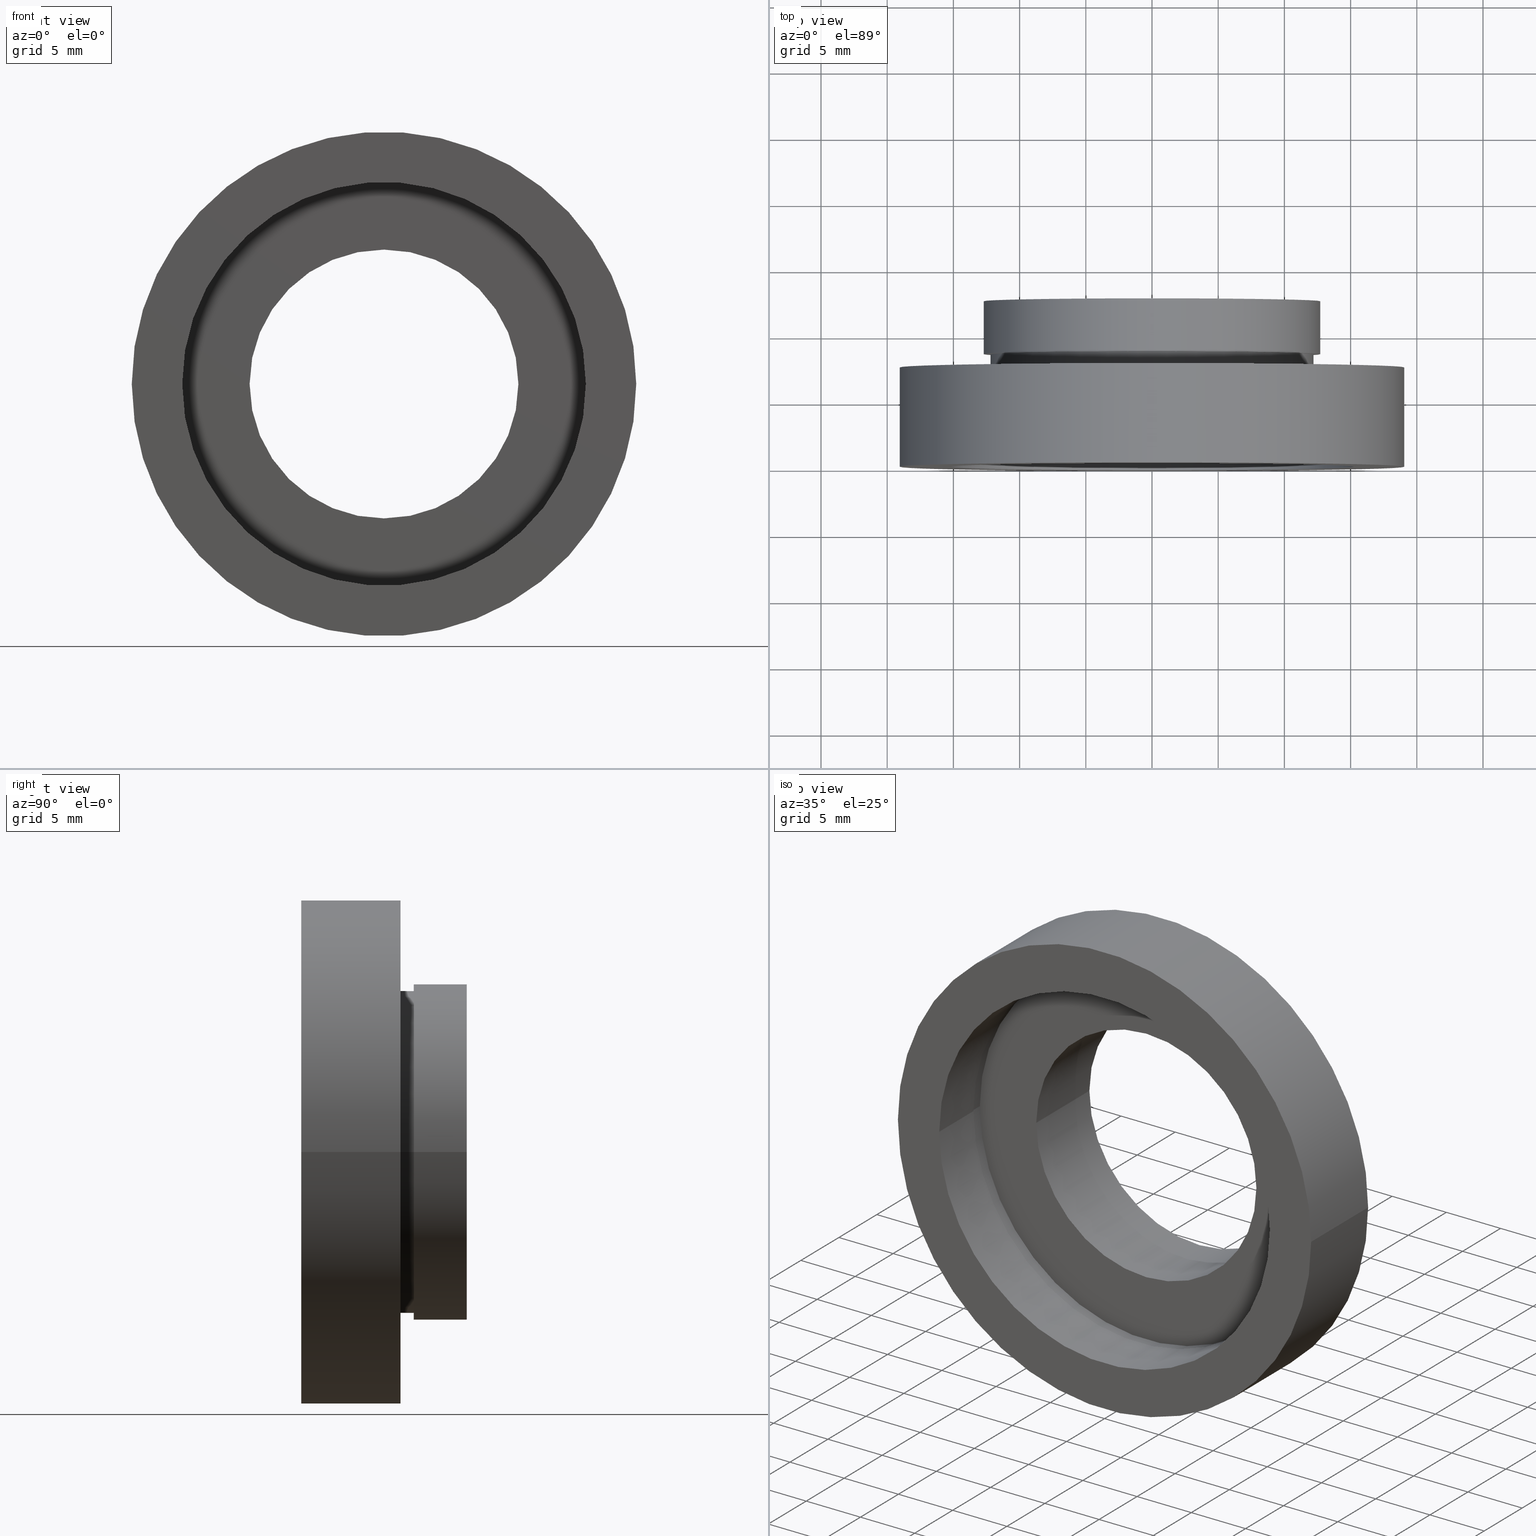
[diagram: canonical four-view strip — front | top / right | iso, engineering-drawing reading convention]
A machine part, canonical four-view strip (front | top / right | iso — engineering-drawing reading convention). The complete STEP part file that produces these views, byte-faithful:
ISO-10303-21;
HEADER;
FILE_DESCRIPTION (( 'STEP AP214' ),
    '1' );
FILE_NAME ('504110.STEP',
    '2019-10-08T06:07:28',
    ( '' ),
    ( '' ),
    'SwSTEP 2.0',
    'SolidWorks 2016',
    '' );
FILE_SCHEMA (( 'AUTOMOTIVE_DESIGN' ));
ENDSEC;

DATA;
#1 = VECTOR ( 'NONE', #292, 1000.000000000000000 ) ;
#2 = CARTESIAN_POINT ( 'NONE',  ( 12.19999999999999900, 16.88601823708207700, 1.494069094959770900E-015 ) ) ;
#3 = AXIS2_PLACEMENT_3D ( 'NONE', #568, #381, #423 ) ;
#4 = STYLED_ITEM ( 'NONE', ( #469 ), #587 ) ;
#5 = ORIENTED_EDGE ( 'NONE', *, *, #62, .F. ) ;
#6 = APPLICATION_CONTEXT ( 'automotive_design' ) ;
#7 = ADVANCED_FACE ( 'NONE', ( #277 ), #251, .F. ) ;
#8 = CYLINDRICAL_SURFACE ( 'NONE', #90, 19.05000000000000400 ) ;
#9 = CIRCLE ( 'NONE', #465, 19.05000000000000400 ) ;
#10 = CARTESIAN_POINT ( 'NONE',  ( 5.371323195044477300E-016, 12.49999999999999500, 0.0000000000000000000 ) ) ;
#11 = AXIS2_PLACEMENT_3D ( 'NONE', #204, #517, #338 ) ;
#12 = DIRECTION ( 'NONE',  ( -1.224646799147351000E-016, 1.000000000000000000, -0.0000000000000000000 ) ) ;
#13 = VERTEX_POINT ( 'NONE', #523 ) ;
#14 = PRESENTATION_LAYER_ASSIGNMENT (  '', '', ( #538 ) ) ;
#15 = SURFACE_STYLE_FILL_AREA ( #226 ) ;
#16 = PRODUCT ( '504110', '504110', '', ( #151 ) ) ;
#17 = PRESENTATION_LAYER_ASSIGNMENT (  '', '', ( #403 ) ) ;
#18 = EDGE_CURVE ( 'NONE', #165, #581, #170, .T. ) ;
#19 = LINE ( 'NONE', #2, #588 ) ;
#20 = CARTESIAN_POINT ( 'NONE',  ( 12.20000000000000100, 7.500000000000000000, 1.494069094959770900E-015 ) ) ;
#21 = CIRCLE ( 'NONE', #368, 12.71000000000000100 ) ;
#22 = DIRECTION ( 'NONE',  ( -1.224646799147351000E-016, 1.000000000000000000, -0.0000000000000000000 ) ) ;
#23 = DIRECTION ( 'NONE',  ( -1.224646799147351000E-016, 1.000000000000000000, -0.0000000000000000000 ) ) ;
#24 = DIRECTION ( 'NONE',  ( -1.000000000000000000, -1.130113013665672600E-016, 0.0000000000000000000 ) ) ;
#25 = ORIENTED_EDGE ( 'NONE', *, *, #18, .F. ) ;
#26 = DIRECTION ( 'NONE',  ( -1.000000000000000000, -1.709087168450056200E-016, 0.0000000000000000000 ) ) ;
#27 = DIRECTION ( 'NONE',  ( -1.224646799147351000E-016, 1.000000000000000000, -0.0000000000000000000 ) ) ;
#28 =( NAMED_UNIT ( * ) PLANE_ANGLE_UNIT ( ) SI_UNIT ( $, .RADIAN. ) );
#29 =( NAMED_UNIT ( * ) PLANE_ANGLE_UNIT ( ) SI_UNIT ( $, .RADIAN. ) );
#30 = SURFACE_SIDE_STYLE ('',( #347 ) ) ;
#31 = CIRCLE ( 'NONE', #3, 12.70999999999999900 ) ;
#32 = FACE_BOUND ( 'NONE', #100, .T. ) ;
#33 = CARTESIAN_POINT ( 'NONE',  ( 15.34999999999999800, 16.88601823708208000, 1.879832836691187100E-015 ) ) ;
#34 = ORIENTED_EDGE ( 'NONE', *, *, #541, .F. ) ;
#35 = DIRECTION ( 'NONE',  ( -1.000000000000000000, -1.138269997360109900E-016, 0.0000000000000000000 ) ) ;
#36 = DIRECTION ( 'NONE',  ( -1.224646799147351000E-016, 1.000000000000000000, -0.0000000000000000000 ) ) ;
#37 = FACE_OUTER_BOUND ( 'NONE', #114, .T. ) ;
#38 = CARTESIAN_POINT ( 'NONE',  ( 19.05000000000000400, -1.136494799577910300E-015, 2.332952152375708400E-015 ) ) ;
#39 = AXIS2_PLACEMENT_3D ( 'NONE', #411, #601, #133 ) ;
#40 = MECHANICAL_DESIGN_GEOMETRIC_PRESENTATION_REPRESENTATION (  '', ( #4 ), #372 ) ;
#41 = FILL_AREA_STYLE ('',( #513 ) ) ;
#42 = UNCERTAINTY_MEASURE_WITH_UNIT (LENGTH_MEASURE( 1.000000000000000100E-005 ), #435, 'distance_accuracy_value', 'NONE');
#43 = CIRCLE ( 'NONE', #592, 19.05000000000000400 ) ;
#44 = VECTOR ( 'NONE', #221, 1000.000000000000000 ) ;
#45 = DIRECTION ( 'NONE',  ( -1.224646799147351000E-016, 1.000000000000000000, -0.0000000000000000000 ) ) ;
#46 = CYLINDRICAL_SURFACE ( 'NONE', #153, 10.14999999999999900 ) ;
#47 =( LENGTH_UNIT ( ) NAMED_UNIT ( * ) SI_UNIT ( .MILLI., .METRE. ) );
#48 = ORIENTED_EDGE ( 'NONE', *, *, #18, .T. ) ;
#49 = ORIENTED_EDGE ( 'NONE', *, *, #357, .T. ) ;
#50 = CYLINDRICAL_SURFACE ( 'NONE', #142, 12.70999999999999900 ) ;
#51 = EDGE_LOOP ( 'NONE', ( #274, #567 ) ) ;
#52 =( LENGTH_UNIT ( ) NAMED_UNIT ( * ) SI_UNIT ( .MILLI., .METRE. ) );
#53 = CARTESIAN_POINT ( 'NONE',  ( 2.067940818438636500E-015, -3.469446951953614200E-015, 0.0000000000000000000 ) ) ;
#54 = VECTOR ( 'NONE', #176, 1000.000000000000000 ) ;
#55 = AXIS2_PLACEMENT_3D ( 'NONE', #314, #27, #186 ) ;
#56 = VERTEX_POINT ( 'NONE', #208 ) ;
#57 =( LENGTH_UNIT ( ) NAMED_UNIT ( * ) SI_UNIT ( .MILLI., .METRE. ) );
#58 = AXIS2_PLACEMENT_3D ( 'NONE', #478, #419, #35 ) ;
#59 = VERTEX_POINT ( 'NONE', #341 ) ;
#60 = MECHANICAL_DESIGN_GEOMETRIC_PRESENTATION_REPRESENTATION (  '', ( #403 ), #122 ) ;
#61 = DIRECTION ( 'NONE',  ( -1.224646799147351000E-016, 1.000000000000000000, -0.0000000000000000000 ) ) ;
#62 = EDGE_CURVE ( 'NONE', #214, #334, #267, .T. ) ;
#63 = DIRECTION ( 'NONE',  ( -1.224646799147351000E-016, 1.000000000000000000, -0.0000000000000000000 ) ) ;
#64 = ADVANCED_FACE ( 'NONE', ( #474, #37 ), #520, .F. ) ;
#65 = LINE ( 'NONE', #494, #254 ) ;
#66 = LINE ( 'NONE', #111, #500 ) ;
#67 = SURFACE_STYLE_USAGE ( .BOTH. , #108 ) ;
#68 = UNCERTAINTY_MEASURE_WITH_UNIT (LENGTH_MEASURE( 1.000000000000000100E-005 ), #57, 'distance_accuracy_value', 'NONE');
#69 = ORIENTED_EDGE ( 'NONE', *, *, #385, .T. ) ;
#70 = CYLINDRICAL_SURFACE ( 'NONE', #501, 12.19999999999999900 ) ;
#71 = VERTEX_POINT ( 'NONE', #576 ) ;
#72 = FACE_OUTER_BOUND ( 'NONE', #349, .T. ) ;
#73 = EDGE_LOOP ( 'NONE', ( #458, #296 ) ) ;
#74 = DIRECTION ( 'NONE',  ( -1.000000000000000000, -1.130113013665672600E-016, 0.0000000000000000000 ) ) ;
#75 = ORIENTED_EDGE ( 'NONE', *, *, #205, .F. ) ;
#76 = CARTESIAN_POINT ( 'NONE',  ( 0.0000000000000000000, 16.88601823708207700, 0.0000000000000000000 ) ) ;
#77 =( NAMED_UNIT ( * ) SI_UNIT ( $, .STERADIAN. ) SOLID_ANGLE_UNIT ( ) );
#78 = AXIS2_PLACEMENT_3D ( 'NONE', #364, #82, #180 ) ;
#79 = MECHANICAL_DESIGN_GEOMETRIC_PRESENTATION_REPRESENTATION (  '', ( #539 ), #112 ) ;
#80 = ORIENTED_EDGE ( 'NONE', *, *, #503, .T. ) ;
#81 = ORIENTED_EDGE ( 'NONE', *, *, #404, .T. ) ;
#82 = DIRECTION ( 'NONE',  ( -1.224646799147351000E-016, 1.000000000000000000, -0.0000000000000000000 ) ) ;
#83 = ORIENTED_EDGE ( 'NONE', *, *, #96, .T. ) ;
#84 = SURFACE_SIDE_STYLE ('',( #493 ) ) ;
#85 = CYLINDRICAL_SURFACE ( 'NONE', #476, 15.23999999999999800 ) ;
#86 = PRESENTATION_STYLE_ASSIGNMENT (( #408 ) ) ;
#87 = SURFACE_SIDE_STYLE ('',( #15 ) ) ;
#88 = ORIENTED_EDGE ( 'NONE', *, *, #167, .T. ) ;
#89 =( LENGTH_UNIT ( ) NAMED_UNIT ( * ) SI_UNIT ( .MILLI., .METRE. ) );
#90 = AXIS2_PLACEMENT_3D ( 'NONE', #260, #259, #164 ) ;
#91 = VERTEX_POINT ( 'NONE', #291 ) ;
#92 = FILL_AREA_STYLE ('',( #137 ) ) ;
#93 = AXIS2_PLACEMENT_3D ( 'NONE', #179, #318, #462 ) ;
#94 =( GEOMETRIC_REPRESENTATION_CONTEXT ( 3 ) GLOBAL_UNCERTAINTY_ASSIGNED_CONTEXT ( ( #42 ) ) GLOBAL_UNIT_ASSIGNED_CONTEXT ( ( #435, #382, #253 ) ) REPRESENTATION_CONTEXT ( 'NONE', 'WORKASPACE' ) );
#95 = DIRECTION ( 'NONE',  ( -1.224646799147351000E-016, 1.000000000000000000, -0.0000000000000000000 ) ) ;
#96 = EDGE_CURVE ( 'NONE', #181, #163, #19, .T. ) ;
#97 = SURFACE_STYLE_USAGE ( .BOTH. , #514 ) ;
#98 =( LENGTH_UNIT ( ) NAMED_UNIT ( * ) SI_UNIT ( .MILLI., .METRE. ) );
#99 = DIRECTION ( 'NONE',  ( -1.000000000000000000, -2.276539994720219300E-016, 0.0000000000000000000 ) ) ;
#100 = EDGE_LOOP ( 'NONE', ( #583, #113 ) ) ;
#101 = DIRECTION ( 'NONE',  ( -1.224646799147351000E-016, 1.000000000000000000, -0.0000000000000000000 ) ) ;
#102 = PRODUCT_DEFINITION_CONTEXT ( 'detailed design', #6, 'design' ) ;
#103 = EDGE_LOOP ( 'NONE', ( #331, #48 ) ) ;
#104 = FILL_AREA_STYLE ('',( #620 ) ) ;
#105 = DIRECTION ( 'NONE',  ( 1.000000000000000000, 1.224646799147351000E-016, 0.0000000000000000000 ) ) ;
#106 = CIRCLE ( 'NONE', #560, 15.34999999999999800 ) ;
#107 = APPLICATION_CONTEXT ( 'automotive_design' ) ;
#108 = SURFACE_SIDE_STYLE ('',( #456 ) ) ;
#109 = ADVANCED_FACE ( 'NONE', ( #619, #155 ), #152, .F. ) ;
#110 = UNCERTAINTY_MEASURE_WITH_UNIT (LENGTH_MEASURE( 1.000000000000000100E-005 ), #505, 'distance_accuracy_value', 'NONE');
#111 = CARTESIAN_POINT ( 'NONE',  ( 19.05000000000000400, 16.88601823708208000, 2.332952152375708400E-015 ) ) ;
#112 =( GEOMETRIC_REPRESENTATION_CONTEXT ( 3 ) GLOBAL_UNCERTAINTY_ASSIGNED_CONTEXT ( ( #546 ) ) GLOBAL_UNIT_ASSIGNED_CONTEXT ( ( #145, #236, #244 ) ) REPRESENTATION_CONTEXT ( 'NONE', 'WORKASPACE' ) );
#113 = ORIENTED_EDGE ( 'NONE', *, *, #605, .F. ) ;
#114 = EDGE_LOOP ( 'NONE', ( #460, #199 ) ) ;
#115 = COLOUR_RGB ( '',1.000000000000000000, 1.000000000000000000, 1.000000000000000000 ) ;
#116 = CIRCLE ( 'NONE', #222, 10.14999999999999900 ) ;
#117 = CARTESIAN_POINT ( 'NONE',  ( -19.05000000000000400, 16.88601823708207300, 0.0000000000000000000 ) ) ;
#118 = EDGE_LOOP ( 'NONE', ( #401, #69 ) ) ;
#119 = AXIS2_PLACEMENT_3D ( 'NONE', #209, #623, #436 ) ;
#120 = CARTESIAN_POINT ( 'NONE',  ( 10.15000000000000000, 5.499999999999997300, 1.243016501134563700E-015 ) ) ;
#121 = AXIS2_PLACEMENT_3D ( 'NONE', #266, #548, #504 ) ;
#122 =( GEOMETRIC_REPRESENTATION_CONTEXT ( 3 ) GLOBAL_UNCERTAINTY_ASSIGNED_CONTEXT ( ( #307 ) ) GLOBAL_UNIT_ASSIGNED_CONTEXT ( ( #52, #526, #430 ) ) REPRESENTATION_CONTEXT ( 'NONE', 'WORKASPACE' ) );
#123 = CARTESIAN_POINT ( 'NONE',  ( 12.71000000000000300, 8.500000000000000000, 1.556526081716286200E-015 ) ) ;
#124 = EDGE_CURVE ( 'NONE', #554, #261, #9, .T. ) ;
#125 = DIRECTION ( 'NONE',  ( -1.224646799147351000E-016, 1.000000000000000000, -0.0000000000000000000 ) ) ;
#126 = CARTESIAN_POINT ( 'NONE',  ( 19.05000000000000400, 7.499999999999999100, 2.332952152375708400E-015 ) ) ;
#127 = ORIENTED_EDGE ( 'NONE', *, *, #234, .T. ) ;
#128 = CARTESIAN_POINT ( 'NONE',  ( -10.14999999999999900, 16.88601823708207700, 0.0000000000000000000 ) ) ;
#129 = CYLINDRICAL_SURFACE ( 'NONE', #304, 15.34999999999999800 ) ;
#130 = COLOUR_RGB ( '',1.000000000000000000, 1.000000000000000000, 1.000000000000000000 ) ;
#131 = DIRECTION ( 'NONE',  ( -1.224646799147351000E-016, 1.000000000000000000, -0.0000000000000000000 ) ) ;
#132 = SURFACE_STYLE_USAGE ( .BOTH. , #84 ) ;
#133 = DIRECTION ( 'NONE',  ( 1.000000000000000000, 1.224646799147351000E-016, 0.0000000000000000000 ) ) ;
#134 = CARTESIAN_POINT ( 'NONE',  ( -10.15000000000000000, 12.49999999999999500, 0.0000000000000000000 ) ) ;
#135 = VERTEX_POINT ( 'NONE', #572 ) ;
#136 = CARTESIAN_POINT ( 'NONE',  ( 5.371323195044473300E-016, 12.49999999999999600, 0.0000000000000000000 ) ) ;
#137 = FILL_AREA_STYLE_COLOUR ( '', #130 ) ;
#138 = DIRECTION ( 'NONE',  ( -1.000000000000000000, -1.365923996832131400E-016, 0.0000000000000000000 ) ) ;
#139 = EDGE_LOOP ( 'NONE', ( #442, #127, #622, #355 ) ) ;
#140 = ORIENTED_EDGE ( 'NONE', *, *, #308, .F. ) ;
#141 = AXIS2_PLACEMENT_3D ( 'NONE', #616, #285, #198 ) ;
#142 = AXIS2_PLACEMENT_3D ( 'NONE', #240, #472, #327 ) ;
#143 = DIRECTION ( 'NONE',  ( -1.000000000000000000, 0.0000000000000000000, 0.0000000000000000000 ) ) ;
#144 = SURFACE_STYLE_USAGE ( .BOTH. , #30 ) ;
#145 =( LENGTH_UNIT ( ) NAMED_UNIT ( * ) SI_UNIT ( .MILLI., .METRE. ) );
#146 = FACE_OUTER_BOUND ( 'NONE', #73, .T. ) ;
#147 = CARTESIAN_POINT ( 'NONE',  ( 1.026991039163387700E-015, 8.499999999999998200, 0.0000000000000000000 ) ) ;
#148 = ORIENTED_EDGE ( 'NONE', *, *, #375, .F. ) ;
#149 = CARTESIAN_POINT ( 'NONE',  ( 0.0000000000000000000, 0.0000000000000000000, 0.0000000000000000000 ) ) ;
#150 = AXIS2_PLACEMENT_3D ( 'NONE', #389, #431, #105 ) ;
#151 = PRODUCT_CONTEXT ( 'NONE', #107, 'mechanical' ) ;
#152 = PLANE ( 'NONE',  #11 ) ;
#153 = AXIS2_PLACEMENT_3D ( 'NONE', #555, #606, #367 ) ;
#154 = ADVANCED_FACE ( 'NONE', ( #506 ), #530, .T. ) ;
#155 = FACE_BOUND ( 'NONE', #103, .T. ) ;
#156 = APPLICATION_PROTOCOL_DEFINITION ( 'draft international standard', 'automotive_design', 1998, #107 ) ;
#157 = EDGE_CURVE ( 'NONE', #71, #181, #178, .T. ) ;
#158 = ORIENTED_EDGE ( 'NONE', *, *, #417, .T. ) ;
#159 = DIRECTION ( 'NONE',  ( -1.224646799147351000E-016, 1.000000000000000000, -0.0000000000000000000 ) ) ;
#160 = CARTESIAN_POINT ( 'NONE',  ( 5.371323195044473300E-016, 12.49999999999999600, 0.0000000000000000000 ) ) ;
#161 = VECTOR ( 'NONE', #496, 1000.000000000000000 ) ;
#162 = EDGE_LOOP ( 'NONE', ( #148, #455, #245, #183 ) ) ;
#163 = VERTEX_POINT ( 'NONE', #270 ) ;
#164 = DIRECTION ( 'NONE',  ( -1.000000000000000000, -1.821231995776175000E-016, 0.0000000000000000000 ) ) ;
#165 = VERTEX_POINT ( 'NONE', #323 ) ;
#166 = FACE_OUTER_BOUND ( 'NONE', #286, .T. ) ;
#167 = EDGE_CURVE ( 'NONE', #394, #163, #237, .T. ) ;
#168 = VECTOR ( 'NONE', #392, 1000.000000000000000 ) ;
#169 = VERTEX_POINT ( 'NONE', #134 ) ;
#170 = CIRCLE ( 'NONE', #220, 15.24000000000000000 ) ;
#171 = CARTESIAN_POINT ( 'NONE',  ( 0.0000000000000000000, 16.88601823708207700, 0.0000000000000000000 ) ) ;
#172 = MECHANICAL_DESIGN_GEOMETRIC_PRESENTATION_REPRESENTATION (  '', ( #538 ), #402 ) ;
#173 = PRESENTATION_LAYER_ASSIGNMENT (  '', '', ( #4 ) ) ;
#174 = MANIFOLD_SOLID_BREP ( '��ת1', #332 ) ;
#175 = PLANE ( 'NONE',  #39 ) ;
#176 = DIRECTION ( 'NONE',  ( -1.224646799147351000E-016, 1.000000000000000000, -0.0000000000000000000 ) ) ;
#177 = ADVANCED_BREP_SHAPE_REPRESENTATION ( '504110', ( #174, #249 ), #94 ) ;
#178 = CIRCLE ( 'NONE', #273, 12.19999999999999900 ) ;
#179 = CARTESIAN_POINT ( 'NONE',  ( 2.067940818438636500E-015, -3.469446951953614200E-015, 0.0000000000000000000 ) ) ;
#180 = DIRECTION ( 'NONE',  ( -1.000000000000000000, -1.138269997360109900E-016, 0.0000000000000000000 ) ) ;
#181 = VERTEX_POINT ( 'NONE', #20 ) ;
#182 = COLOUR_RGB ( '',1.000000000000000000, 1.000000000000000000, 1.000000000000000000 ) ;
#183 = ORIENTED_EDGE ( 'NONE', *, *, #346, .T. ) ;
#184 = CIRCLE ( 'NONE', #608, 12.71000000000000100 ) ;
#185 = CARTESIAN_POINT ( 'NONE',  ( 1.394385078907593200E-015, 5.499999999999996400, 0.0000000000000000000 ) ) ;
#186 = DIRECTION ( 'NONE',  ( -1.000000000000000000, -1.421904488505579700E-016, 0.0000000000000000000 ) ) ;
#187 = EDGE_CURVE ( 'NONE', #581, #284, #528, .T. ) ;
#188 = SURFACE_STYLE_USAGE ( .BOTH. , #232 ) ;
#189 = CARTESIAN_POINT ( 'NONE',  ( 1.149455719078122700E-015, 7.499999999999998200, 0.0000000000000000000 ) ) ;
#190 = ORIENTED_EDGE ( 'NONE', *, *, #477, .F. ) ;
#191 = AXIS2_PLACEMENT_3D ( 'NONE', #559, #23, #612 ) ;
#192 = AXIS2_PLACEMENT_3D ( 'NONE', #376, #509, #337 ) ;
#193 = EDGE_CURVE ( 'NONE', #519, #135, #196, .T. ) ;
#194 = DIRECTION ( 'NONE',  ( -1.000000000000000000, -1.365923996832131400E-016, 0.0000000000000000000 ) ) ;
#195 = CIRCLE ( 'NONE', #437, 19.05000000000000100 ) ;
#196 = CIRCLE ( 'NONE', #339, 15.34999999999999800 ) ;
#197 =( NAMED_UNIT ( * ) PLANE_ANGLE_UNIT ( ) SI_UNIT ( $, .RADIAN. ) );
#198 = DIRECTION ( 'NONE',  ( -1.000000000000000000, -1.224646799147351000E-016, 0.0000000000000000000 ) ) ;
#199 = ORIENTED_EDGE ( 'NONE', *, *, #224, .T. ) ;
#200 = SURFACE_STYLE_USAGE ( .BOTH. , #242 ) ;
#201 = LINE ( 'NONE', #609, #544 ) ;
#202 = FILL_AREA_STYLE ('',( #280 ) ) ;
#203 = DIRECTION ( 'NONE',  ( 1.000000000000000000, 0.0000000000000000000, 0.0000000000000000000 ) ) ;
#204 = CARTESIAN_POINT ( 'NONE',  ( 19.05000000000000400, -4.336808689942023700E-016, 0.0000000000000000000 ) ) ;
#205 = EDGE_CURVE ( 'NONE', #508, #59, #21, .T. ) ;
#206 = EDGE_LOOP ( 'NONE', ( #499, #463, #295, #448 ) ) ;
#207 = DIRECTION ( 'NONE',  ( -1.224646799147351000E-016, 1.000000000000000000, -0.0000000000000000000 ) ) ;
#208 = CARTESIAN_POINT ( 'NONE',  ( -12.70999999999999700, 8.499999999999996400, 0.0000000000000000000 ) ) ;
#209 = CARTESIAN_POINT ( 'NONE',  ( 0.0000000000000000000, 16.88601823708207700, 0.0000000000000000000 ) ) ;
#210 = ADVANCED_FACE ( 'NONE', ( #32, #146 ), #223, .F. ) ;
#211 = PRESENTATION_LAYER_ASSIGNMENT (  '', '', ( #342 ) ) ;
#212 = ADVANCED_FACE ( 'NONE', ( #566 ), #8, .T. ) ;
#213 = AXIS2_PLACEMENT_3D ( 'NONE', #160, #348, #344 ) ;
#214 = VERTEX_POINT ( 'NONE', #120 ) ;
#215 = VERTEX_POINT ( 'NONE', #589 ) ;
#216 = CYLINDRICAL_SURFACE ( 'NONE', #191, 19.05000000000000400 ) ;
#217 = VERTEX_POINT ( 'NONE', #123 ) ;
#218 = CARTESIAN_POINT ( 'NONE',  ( 1.516849758822328300E-015, 4.499999999999997300, 0.0000000000000000000 ) ) ;
#219 = ORIENTED_EDGE ( 'NONE', *, *, #450, .F. ) ;
#220 = AXIS2_PLACEMENT_3D ( 'NONE', #53, #61, #246 ) ;
#221 = DIRECTION ( 'NONE',  ( -1.224646799147351000E-016, 1.000000000000000000, -0.0000000000000000000 ) ) ;
#222 = AXIS2_PLACEMENT_3D ( 'NONE', #185, #131, #322 ) ;
#223 = PLANE ( 'NONE',  #558 ) ;
#224 = EDGE_CURVE ( 'NONE', #135, #519, #422, .T. ) ;
#225 = DIRECTION ( 'NONE',  ( -1.000000000000000000, -1.224646799147350700E-016, 0.0000000000000000000 ) ) ;
#226 = FILL_AREA_STYLE ('',( #256 ) ) ;
#227 = PRESENTATION_STYLE_ASSIGNMENT (( #97 ) ) ;
#228 = DIRECTION ( 'NONE',  ( -1.224646799147351000E-016, 1.000000000000000000, -0.0000000000000000000 ) ) ;
#229 = FILL_AREA_STYLE_COLOUR ( '', #243 ) ;
#230 = PRESENTATION_STYLE_ASSIGNMENT (( #132 ) ) ;
#231 = EDGE_CURVE ( 'NONE', #581, #165, #352, .T. ) ;
#232 = SURFACE_SIDE_STYLE ('',( #535 ) ) ;
#233 =( NAMED_UNIT ( * ) PLANE_ANGLE_UNIT ( ) SI_UNIT ( $, .RADIAN. ) );
#234 = EDGE_CURVE ( 'NONE', #181, #71, #444, .T. ) ;
#235 = DIRECTION ( 'NONE',  ( -1.000000000000000000, -2.260226027331345300E-016, 0.0000000000000000000 ) ) ;
#236 =( NAMED_UNIT ( * ) PLANE_ANGLE_UNIT ( ) SI_UNIT ( $, .RADIAN. ) );
#237 = CIRCLE ( 'NONE', #55, 12.19999999999999900 ) ;
#238 =( GEOMETRIC_REPRESENTATION_CONTEXT ( 3 ) GLOBAL_UNCERTAINTY_ASSIGNED_CONTEXT ( ( #440 ) ) GLOBAL_UNIT_ASSIGNED_CONTEXT ( ( #47, #197, #426 ) ) REPRESENTATION_CONTEXT ( 'NONE', 'WORKASPACE' ) );
#239 = SURFACE_SIDE_STYLE ('',( #597 ) ) ;
#240 = CARTESIAN_POINT ( 'NONE',  ( 0.0000000000000000000, 16.88601823708207700, 0.0000000000000000000 ) ) ;
#241 = EDGE_LOOP ( 'NONE', ( #302, #80, #388, #190 ) ) ;
#242 = SURFACE_SIDE_STYLE ('',( #379 ) ) ;
#243 = COLOUR_RGB ( '',1.000000000000000000, 1.000000000000000000, 1.000000000000000000 ) ;
#244 =( NAMED_UNIT ( * ) SI_UNIT ( $, .STERADIAN. ) SOLID_ANGLE_UNIT ( ) );
#245 = ORIENTED_EDGE ( 'NONE', *, *, #450, .T. ) ;
#246 = DIRECTION ( 'NONE',  ( -1.000000000000000000, -1.224646799147350700E-016, 0.0000000000000000000 ) ) ;
#247 = MECHANICAL_DESIGN_GEOMETRIC_PRESENTATION_REPRESENTATION (  '', ( #473 ), #276 ) ;
#248 = ADVANCED_FACE ( 'NONE', ( #491 ), #584, .T. ) ;
#249 = AXIS2_PLACEMENT_3D ( 'NONE', #149, #475, #203 ) ;
#250 = EDGE_CURVE ( 'NONE', #512, #554, #545, .T. ) ;
#251 = CYLINDRICAL_SURFACE ( 'NONE', #119, 15.34999999999999800 ) ;
#252 = ADVANCED_FACE ( 'NONE', ( #510 ), #461, .F. ) ;
#253 =( NAMED_UNIT ( * ) SI_UNIT ( $, .STERADIAN. ) SOLID_ANGLE_UNIT ( ) );
#254 = VECTOR ( 'NONE', #406, 1000.000000000000000 ) ;
#255 = ADVANCED_FACE ( 'NONE', ( #415, #72 ), #175, .F. ) ;
#256 = FILL_AREA_STYLE_COLOUR ( '', #380 ) ;
#257 = EDGE_CURVE ( 'NONE', #165, #290, #294, .T. ) ;
#258 = CIRCLE ( 'NONE', #466, 10.15000000000000000 ) ;
#259 = DIRECTION ( 'NONE',  ( -1.224646799147351000E-016, 1.000000000000000000, -0.0000000000000000000 ) ) ;
#260 = CARTESIAN_POINT ( 'NONE',  ( 0.0000000000000000000, 16.88601823708207700, 0.0000000000000000000 ) ) ;
#261 = VERTEX_POINT ( 'NONE', #126 ) ;
#262 = MECHANICAL_DESIGN_GEOMETRIC_PRESENTATION_REPRESENTATION (  '', ( #342 ), #238 ) ;
#263 = CARTESIAN_POINT ( 'NONE',  ( -15.23999999999999500, 4.499999999999995600, 0.0000000000000000000 ) ) ;
#264 = CIRCLE ( 'NONE', #591, 10.14999999999999900 ) ;
#265 = CARTESIAN_POINT ( 'NONE',  ( 5.371323195044477300E-016, 12.49999999999999500, 0.0000000000000000000 ) ) ;
#266 = CARTESIAN_POINT ( 'NONE',  ( 10.15000000000000000, 5.499999999999999100, 0.0000000000000000000 ) ) ;
#267 = LINE ( 'NONE', #578, #1 ) ;
#268 = DIRECTION ( 'NONE',  ( -1.000000000000000000, -2.276539994720219300E-016, 0.0000000000000000000 ) ) ;
#269 = DIRECTION ( 'NONE',  ( -1.224646799147351000E-016, 1.000000000000000000, -0.0000000000000000000 ) ) ;
#270 = CARTESIAN_POINT ( 'NONE',  ( 12.20000000000000100, 8.500000000000000000, 1.494069094959770900E-015 ) ) ;
#271 = DIRECTION ( 'NONE',  ( -1.000000000000000000, 0.0000000000000000000, 0.0000000000000000000 ) ) ;
#272 = ORIENTED_EDGE ( 'NONE', *, *, #157, .F. ) ;
#273 = AXIS2_PLACEMENT_3D ( 'NONE', #189, #557, #607 ) ;
#274 = ORIENTED_EDGE ( 'NONE', *, *, #417, .F. ) ;
#275 = PLANE ( 'NONE',  #121 ) ;
#276 =( GEOMETRIC_REPRESENTATION_CONTEXT ( 3 ) GLOBAL_UNCERTAINTY_ASSIGNED_CONTEXT ( ( #562 ) ) GLOBAL_UNIT_ASSIGNED_CONTEXT ( ( #492, #28, #454 ) ) REPRESENTATION_CONTEXT ( 'NONE', 'WORKASPACE' ) );
#277 = FACE_OUTER_BOUND ( 'NONE', #162, .T. ) ;
#278 = PRODUCT_DEFINITION ( 'δ֪', '', #305, #102 ) ;
#279 = EDGE_CURVE ( 'NONE', #163, #394, #481, .T. ) ;
#280 = FILL_AREA_STYLE_COLOUR ( '', #182 ) ;
#281 = FILL_AREA_STYLE ('',( #614 ) ) ;
#282 = LINE ( 'NONE', #529, #168 ) ;
#283 = CARTESIAN_POINT ( 'NONE',  ( 0.0000000000000000000, 16.88601823708207700, 0.0000000000000000000 ) ) ;
#284 = VERTEX_POINT ( 'NONE', #263 ) ;
#285 = DIRECTION ( 'NONE',  ( -1.224646799147351000E-016, 1.000000000000000000, 0.0000000000000000000 ) ) ;
#286 = EDGE_LOOP ( 'NONE', ( #312, #432, #317, #219 ) ) ;
#287 = ORIENTED_EDGE ( 'NONE', *, *, #385, .F. ) ;
#288 = EDGE_CURVE ( 'NONE', #59, #508, #184, .T. ) ;
#289 = EDGE_CURVE ( 'NONE', #284, #290, #405, .T. ) ;
#290 = VERTEX_POINT ( 'NONE', #594 ) ;
#291 = CARTESIAN_POINT ( 'NONE',  ( -15.34999999999999600, 5.499999999999994700, 0.0000000000000000000 ) ) ;
#292 = DIRECTION ( 'NONE',  ( -1.224646799147351000E-016, 1.000000000000000000, -0.0000000000000000000 ) ) ;
#293 = COLOUR_RGB ( '',1.000000000000000000, 1.000000000000000000, 1.000000000000000000 ) ;
#294 = LINE ( 'NONE', #547, #299 ) ;
#295 = ORIENTED_EDGE ( 'NONE', *, *, #187, .T. ) ;
#296 = ORIENTED_EDGE ( 'NONE', *, *, #205, .T. ) ;
#297 = DIRECTION ( 'NONE',  ( -1.224646799147351000E-016, 1.000000000000000000, -0.0000000000000000000 ) ) ;
#298 = FACE_OUTER_BOUND ( 'NONE', #241, .T. ) ;
#299 = VECTOR ( 'NONE', #228, 1000.000000000000000 ) ;
#300 = ORIENTED_EDGE ( 'NONE', *, *, #610, .F. ) ;
#301 = AXIS2_PLACEMENT_3D ( 'NONE', #384, #63, #271 ) ;
#302 = ORIENTED_EDGE ( 'NONE', *, *, #577, .T. ) ;
#303 = DIRECTION ( 'NONE',  ( 1.000000000000000000, 1.224646799147351000E-016, 0.0000000000000000000 ) ) ;
#304 = AXIS2_PLACEMENT_3D ( 'NONE', #313, #409, #235 ) ;
#305 = PRODUCT_DEFINITION_FORMATION_WITH_SPECIFIED_SOURCE ( '�κ�', '', #16, .NOT_KNOWN. ) ;
#306 = DIRECTION ( 'NONE',  ( -1.224646799147351000E-016, 1.000000000000000000, -0.0000000000000000000 ) ) ;
#307 = UNCERTAINTY_MEASURE_WITH_UNIT (LENGTH_MEASURE( 1.000000000000000100E-005 ), #52, 'distance_accuracy_value', 'NONE');
#308 = EDGE_CURVE ( 'NONE', #13, #169, #553, .T. ) ;
#309 = FACE_OUTER_BOUND ( 'NONE', #324, .T. ) ;
#310 = CARTESIAN_POINT ( 'NONE',  ( 1.026991039163387700E-015, 8.499999999999998200, 0.0000000000000000000 ) ) ;
#311 = DIRECTION ( 'NONE',  ( -1.000000000000000000, -1.364849312334230500E-016, 0.0000000000000000000 ) ) ;
#312 = ORIENTED_EDGE ( 'NONE', *, *, #224, .F. ) ;
#313 = CARTESIAN_POINT ( 'NONE',  ( 0.0000000000000000000, 16.88601823708207700, 0.0000000000000000000 ) ) ;
#314 = CARTESIAN_POINT ( 'NONE',  ( 1.026991039163387700E-015, 8.499999999999998200, 0.0000000000000000000 ) ) ;
#315 = AXIS2_PLACEMENT_3D ( 'NONE', #451, #593, #396 ) ;
#316 = CIRCLE ( 'NONE', #93, 19.05000000000000100 ) ;
#317 = ORIENTED_EDGE ( 'NONE', *, *, #610, .T. ) ;
#318 = DIRECTION ( 'NONE',  ( -1.224646799147351000E-016, 1.000000000000000000, -0.0000000000000000000 ) ) ;
#319 = FILL_AREA_STYLE ('',( #603 ) ) ;
#320 = ORIENTED_EDGE ( 'NONE', *, *, #321, .T. ) ;
#321 = EDGE_CURVE ( 'NONE', #484, #261, #66, .T. ) ;
#322 = DIRECTION ( 'NONE',  ( -1.000000000000000000, -8.545435842250282200E-017, 0.0000000000000000000 ) ) ;
#323 = CARTESIAN_POINT ( 'NONE',  ( 15.24000000000000400, -1.603085230053050900E-015, 1.866361721900566200E-015 ) ) ;
#324 = EDGE_LOOP ( 'NONE', ( #552, #604 ) ) ;
#325 = EDGE_CURVE ( 'NONE', #71, #394, #282, .T. ) ;
#326 = DIRECTION ( 'NONE',  ( -1.224646799147351000E-016, 1.000000000000000000, -0.0000000000000000000 ) ) ;
#327 = DIRECTION ( 'NONE',  ( -1.000000000000000000, 0.0000000000000000000, 0.0000000000000000000 ) ) ;
#328 = ORIENTED_EDGE ( 'NONE', *, *, #503, .F. ) ;
#329 = EDGE_LOOP ( 'NONE', ( #556, #398 ) ) ;
#330 = CARTESIAN_POINT ( 'NONE',  ( -19.04999999999999700, -5.802399104329318300E-015, 0.0000000000000000000 ) ) ;
#331 = ORIENTED_EDGE ( 'NONE', *, *, #231, .T. ) ;
#332 = CLOSED_SHELL ( 'NONE', ( #212, #574, #579, #587, #439, #536, #109, #252, #64, #7, #393, #387, #210, #154, #524, #248, #255, #441 ) ) ;
#333 = CARTESIAN_POINT ( 'NONE',  ( 12.70999999999999900, 16.88601823708207700, 1.556526081716285800E-015 ) ) ;
#334 = VERTEX_POINT ( 'NONE', #531 ) ;
#335 = DIRECTION ( 'NONE',  ( -1.000000000000000000, -1.130113013665672600E-016, 0.0000000000000000000 ) ) ;
#336 = ORIENTED_EDGE ( 'NONE', *, *, #308, .T. ) ;
#337 = DIRECTION ( 'NONE',  ( -1.000000000000000000, 0.0000000000000000000, 0.0000000000000000000 ) ) ;
#338 = DIRECTION ( 'NONE',  ( -1.000000000000000000, -1.224646799147351000E-016, 0.0000000000000000000 ) ) ;
#339 = AXIS2_PLACEMENT_3D ( 'NONE', #218, #356, #74 ) ;
#340 =( NAMED_UNIT ( * ) PLANE_ANGLE_UNIT ( ) SI_UNIT ( $, .RADIAN. ) );
#341 = CARTESIAN_POINT ( 'NONE',  ( -12.71000000000000100, 12.49999999999999300, 0.0000000000000000000 ) ) ;
#342 = STYLED_ITEM ( 'NONE', ( #397 ), #536 ) ;
#343 = PRODUCT_RELATED_PRODUCT_CATEGORY ( 'part', '', ( #16 ) ) ;
#344 = DIRECTION ( 'NONE',  ( -1.000000000000000000, -1.709087168450056200E-016, 0.0000000000000000000 ) ) ;
#345 = DIRECTION ( 'NONE',  ( -1.224646799147351000E-016, 1.000000000000000000, -0.0000000000000000000 ) ) ;
#346 = EDGE_CURVE ( 'NONE', #91, #215, #598, .T. ) ;
#347 = SURFACE_STYLE_FILL_AREA ( #319 ) ;
#348 = DIRECTION ( 'NONE',  ( -1.224646799147351000E-016, 1.000000000000000000, -0.0000000000000000000 ) ) ;
#349 = EDGE_LOOP ( 'NONE', ( #595, #479 ) ) ;
#350 = SHAPE_DEFINITION_REPRESENTATION ( #482, #177 ) ;
#351 = ORIENTED_EDGE ( 'NONE', *, *, #124, .F. ) ;
#352 = CIRCLE ( 'NONE', #354, 15.24000000000000000 ) ;
#353 = ORIENTED_EDGE ( 'NONE', *, *, #321, .F. ) ;
#354 = AXIS2_PLACEMENT_3D ( 'NONE', #485, #306, #225 ) ;
#355 = ORIENTED_EDGE ( 'NONE', *, *, #279, .F. ) ;
#356 = DIRECTION ( 'NONE',  ( -1.224646799147351000E-016, 1.000000000000000000, -0.0000000000000000000 ) ) ;
#357 = EDGE_CURVE ( 'NONE', #290, #284, #518, .T. ) ;
#358 = COLOUR_RGB ( '',1.000000000000000000, 1.000000000000000000, 1.000000000000000000 ) ;
#359 = CARTESIAN_POINT ( 'NONE',  ( 1.516849758822328300E-015, 4.499999999999997300, 0.0000000000000000000 ) ) ;
#360 = ORIENTED_EDGE ( 'NONE', *, *, #62, .T. ) ;
#361 = DIRECTION ( 'NONE',  ( -1.224646799147351000E-016, 1.000000000000000000, -0.0000000000000000000 ) ) ;
#362 = FACE_BOUND ( 'NONE', #621, .T. ) ;
#363 = LINE ( 'NONE', #33, #161 ) ;
#364 = CARTESIAN_POINT ( 'NONE',  ( 1.516849758822328300E-015, 4.499999999999997300, 0.0000000000000000000 ) ) ;
#365 = COLOUR_RGB ( '',1.000000000000000000, 1.000000000000000000, 1.000000000000000000 ) ;
#366 = DIRECTION ( 'NONE',  ( -1.000000000000000000, -8.545435842250282200E-017, 0.0000000000000000000 ) ) ;
#367 = DIRECTION ( 'NONE',  ( -1.000000000000000000, 0.0000000000000000000, 0.0000000000000000000 ) ) ;
#368 = AXIS2_PLACEMENT_3D ( 'NONE', #10, #12, #449 ) ;
#369 = CIRCLE ( 'NONE', #213, 10.15000000000000000 ) ;
#370 = FACE_BOUND ( 'NONE', #118, .T. ) ;
#371 = AXIS2_PLACEMENT_3D ( 'NONE', #600, #395, #24 ) ;
#372 =( GEOMETRIC_REPRESENTATION_CONTEXT ( 3 ) GLOBAL_UNCERTAINTY_ASSIGNED_CONTEXT ( ( #488 ) ) GLOBAL_UNIT_ASSIGNED_CONTEXT ( ( #98, #340, #433 ) ) REPRESENTATION_CONTEXT ( 'NONE', 'WORKASPACE' ) );
#373 = CARTESIAN_POINT ( 'NONE',  ( -15.23999999999999800, -5.335808673854176800E-015, 0.0000000000000000000 ) ) ;
#374 = ORIENTED_EDGE ( 'NONE', *, *, #250, .F. ) ;
#375 = EDGE_CURVE ( 'NONE', #135, #215, #363, .T. ) ;
#376 = CARTESIAN_POINT ( 'NONE',  ( 0.0000000000000000000, 16.88601823708207700, 0.0000000000000000000 ) ) ;
#377 = PRESENTATION_STYLE_ASSIGNMENT (( #67 ) ) ;
#378 = SURFACE_STYLE_USAGE ( .BOTH. , #239 ) ;
#379 = SURFACE_STYLE_FILL_AREA ( #281 ) ;
#380 = COLOUR_RGB ( '',1.000000000000000000, 1.000000000000000000, 1.000000000000000000 ) ;
#381 = DIRECTION ( 'NONE',  ( -1.224646799147351000E-016, 1.000000000000000000, -0.0000000000000000000 ) ) ;
#382 =( NAMED_UNIT ( * ) PLANE_ANGLE_UNIT ( ) SI_UNIT ( $, .RADIAN. ) );
#383 = SURFACE_STYLE_FILL_AREA ( #202 ) ;
#384 = CARTESIAN_POINT ( 'NONE',  ( 0.0000000000000000000, 16.88601823708207700, 0.0000000000000000000 ) ) ;
#385 = EDGE_CURVE ( 'NONE', #214, #13, #116, .T. ) ;
#386 = FACE_OUTER_BOUND ( 'NONE', #550, .T. ) ;
#387 = ADVANCED_FACE ( 'NONE', ( #386 ), #46, .F. ) ;
#388 = ORIENTED_EDGE ( 'NONE', *, *, #288, .F. ) ;
#389 = CARTESIAN_POINT ( 'NONE',  ( 15.23999999999999800, 4.499999999999999100, 0.0000000000000000000 ) ) ;
#390 = ORIENTED_EDGE ( 'NONE', *, *, #477, .T. ) ;
#391 = FACE_OUTER_BOUND ( 'NONE', #429, .T. ) ;
#392 = DIRECTION ( 'NONE',  ( -1.224646799147351000E-016, 1.000000000000000000, -0.0000000000000000000 ) ) ;
#393 = ADVANCED_FACE ( 'NONE', ( #464, #370 ), #275, .F. ) ;
#394 = VERTEX_POINT ( 'NONE', #457 ) ;
#395 = DIRECTION ( 'NONE',  ( -1.224646799147351000E-016, 1.000000000000000000, -0.0000000000000000000 ) ) ;
#396 = DIRECTION ( 'NONE',  ( -1.000000000000000000, -1.421904488505579700E-016, 0.0000000000000000000 ) ) ;
#397 = PRESENTATION_STYLE_ASSIGNMENT (( #200 ) ) ;
#398 = ORIENTED_EDGE ( 'NONE', *, *, #357, .F. ) ;
#399 = ORIENTED_EDGE ( 'NONE', *, *, #167, .F. ) ;
#400 = PRESENTATION_LAYER_ASSIGNMENT (  '', '', ( #590 ) ) ;
#401 = ORIENTED_EDGE ( 'NONE', *, *, #467, .T. ) ;
#402 =( GEOMETRIC_REPRESENTATION_CONTEXT ( 3 ) GLOBAL_UNCERTAINTY_ASSIGNED_CONTEXT ( ( #453 ) ) GLOBAL_UNIT_ASSIGNED_CONTEXT ( ( #89, #29, #551 ) ) REPRESENTATION_CONTEXT ( 'NONE', 'WORKASPACE' ) );
#403 = STYLED_ITEM ( 'NONE', ( #377 ), #177 ) ;
#404 = EDGE_CURVE ( 'NONE', #484, #512, #195, .T. ) ;
#405 = CIRCLE ( 'NONE', #78, 15.23999999999999700 ) ;
#406 = DIRECTION ( 'NONE',  ( -1.224646799147351000E-016, 1.000000000000000000, -0.0000000000000000000 ) ) ;
#407 = EDGE_LOOP ( 'NONE', ( #515, #83, #399, #428 ) ) ;
#408 = SURFACE_STYLE_USAGE ( .BOTH. , #87 ) ;
#409 = DIRECTION ( 'NONE',  ( -1.224646799147351000E-016, 1.000000000000000000, -0.0000000000000000000 ) ) ;
#410 = FILL_AREA_STYLE ('',( #229 ) ) ;
#411 = CARTESIAN_POINT ( 'NONE',  ( 12.20000000000000100, 7.499999999999999100, 0.0000000000000000000 ) ) ;
#412 = MECHANICAL_DESIGN_GEOMETRIC_PRESENTATION_REPRESENTATION (  '', ( #534 ), #445 ) ;
#413 = ORIENTED_EDGE ( 'NONE', *, *, #605, .T. ) ;
#414 = DIRECTION ( 'NONE',  ( -1.224646799147351000E-016, 1.000000000000000000, -0.0000000000000000000 ) ) ;
#415 = FACE_BOUND ( 'NONE', #564, .T. ) ;
#416 = CARTESIAN_POINT ( 'NONE',  ( 2.067940818438636500E-015, -3.469446951953614200E-015, 0.0000000000000000000 ) ) ;
#417 = EDGE_CURVE ( 'NONE', #512, #484, #316, .T. ) ;
#418 = EDGE_LOOP ( 'NONE', ( #353, #81, #615, #34 ) ) ;
#419 = DIRECTION ( 'NONE',  ( -1.224646799147351000E-016, 1.000000000000000000, -0.0000000000000000000 ) ) ;
#420 = PLANE ( 'NONE',  #141 ) ;
#421 = LINE ( 'NONE', #333, #516 ) ;
#422 = CIRCLE ( 'NONE', #434, 15.34999999999999800 ) ;
#423 = DIRECTION ( 'NONE',  ( -1.000000000000000000, -1.364849312334230700E-016, 0.0000000000000000000 ) ) ;
#424 = ORIENTED_EDGE ( 'NONE', *, *, #438, .T. ) ;
#425 = CARTESIAN_POINT ( 'NONE',  ( 12.71000000000000300, 12.49999999999999600, 1.556526081716286200E-015 ) ) ;
#426 =( NAMED_UNIT ( * ) SI_UNIT ( $, .STERADIAN. ) SOLID_ANGLE_UNIT ( ) );
#427 = EDGE_LOOP ( 'NONE', ( #328, #570, #390, #75 ) ) ;
#428 = ORIENTED_EDGE ( 'NONE', *, *, #325, .F. ) ;
#429 = EDGE_LOOP ( 'NONE', ( #25, #446, #49, #540 ) ) ;
#430 =( NAMED_UNIT ( * ) SI_UNIT ( $, .STERADIAN. ) SOLID_ANGLE_UNIT ( ) );
#431 = DIRECTION ( 'NONE',  ( 1.224646799147351000E-016, -1.000000000000000000, 0.0000000000000000000 ) ) ;
#432 = ORIENTED_EDGE ( 'NONE', *, *, #375, .T. ) ;
#433 =( NAMED_UNIT ( * ) SI_UNIT ( $, .STERADIAN. ) SOLID_ANGLE_UNIT ( ) );
#434 = AXIS2_PLACEMENT_3D ( 'NONE', #359, #125, #452 ) ;
#435 =( LENGTH_UNIT ( ) NAMED_UNIT ( * ) SI_UNIT ( .MILLI., .METRE. ) );
#436 = DIRECTION ( 'NONE',  ( -1.000000000000000000, -2.260226027331345300E-016, 0.0000000000000000000 ) ) ;
#437 = AXIS2_PLACEMENT_3D ( 'NONE', #416, #95, #599 ) ;
#438 = EDGE_CURVE ( 'NONE', #169, #334, #258, .T. ) ;
#439 = ADVANCED_FACE ( 'NONE', ( #166 ), #129, .F. ) ;
#440 = UNCERTAINTY_MEASURE_WITH_UNIT (LENGTH_MEASURE( 1.000000000000000100E-005 ), #47, 'distance_accuracy_value', 'NONE');
#441 = ADVANCED_FACE ( 'NONE', ( #490 ), #216, .T. ) ;
#442 = ORIENTED_EDGE ( 'NONE', *, *, #96, .F. ) ;
#443 = DIRECTION ( 'NONE',  ( 1.224646799147351000E-016, -1.000000000000000000, 0.0000000000000000000 ) ) ;
#444 = CIRCLE ( 'NONE', #315, 12.19999999999999900 ) ;
#445 =( GEOMETRIC_REPRESENTATION_CONTEXT ( 3 ) GLOBAL_UNCERTAINTY_ASSIGNED_CONTEXT ( ( #68 ) ) GLOBAL_UNIT_ASSIGNED_CONTEXT ( ( #57, #447, #77 ) ) REPRESENTATION_CONTEXT ( 'NONE', 'WORKASPACE' ) );
#446 = ORIENTED_EDGE ( 'NONE', *, *, #257, .T. ) ;
#447 =( NAMED_UNIT ( * ) PLANE_ANGLE_UNIT ( ) SI_UNIT ( $, .RADIAN. ) );
#448 = ORIENTED_EDGE ( 'NONE', *, *, #289, .T. ) ;
#449 = DIRECTION ( 'NONE',  ( -1.000000000000000000, -1.364849312334230500E-016, 0.0000000000000000000 ) ) ;
#450 = EDGE_CURVE ( 'NONE', #519, #91, #201, .T. ) ;
#451 = CARTESIAN_POINT ( 'NONE',  ( 1.149455719078122700E-015, 7.499999999999998200, 0.0000000000000000000 ) ) ;
#452 = DIRECTION ( 'NONE',  ( -1.000000000000000000, -1.130113013665672600E-016, 0.0000000000000000000 ) ) ;
#453 = UNCERTAINTY_MEASURE_WITH_UNIT (LENGTH_MEASURE( 1.000000000000000100E-005 ), #89, 'distance_accuracy_value', 'NONE');
#454 =( NAMED_UNIT ( * ) SI_UNIT ( $, .STERADIAN. ) SOLID_ANGLE_UNIT ( ) );
#455 = ORIENTED_EDGE ( 'NONE', *, *, #193, .F. ) ;
#456 = SURFACE_STYLE_FILL_AREA ( #104 ) ;
#457 = CARTESIAN_POINT ( 'NONE',  ( -12.19999999999999800, 8.499999999999996400, 0.0000000000000000000 ) ) ;
#458 = ORIENTED_EDGE ( 'NONE', *, *, #288, .T. ) ;
#459 = FACE_OUTER_BOUND ( 'NONE', #489, .T. ) ;
#460 = ORIENTED_EDGE ( 'NONE', *, *, #193, .T. ) ;
#461 = CYLINDRICAL_SURFACE ( 'NONE', #573, 15.23999999999999800 ) ;
#462 = DIRECTION ( 'NONE',  ( -1.000000000000000000, -1.224646799147351200E-016, 0.0000000000000000000 ) ) ;
#463 = ORIENTED_EDGE ( 'NONE', *, *, #231, .F. ) ;
#464 = FACE_OUTER_BOUND ( 'NONE', #585, .T. ) ;
#465 = AXIS2_PLACEMENT_3D ( 'NONE', #497, #36, #138 ) ;
#466 = AXIS2_PLACEMENT_3D ( 'NONE', #136, #269, #26 ) ;
#467 = EDGE_CURVE ( 'NONE', #13, #214, #264, .T. ) ;
#468 = CARTESIAN_POINT ( 'NONE',  ( -19.05000000000000400, 7.499999999999993800, 0.0000000000000000000 ) ) ;
#469 = PRESENTATION_STYLE_ASSIGNMENT (( #378 ) ) ;
#470 = PRESENTATION_STYLE_ASSIGNMENT (( #188 ) ) ;
#471 = EDGE_LOOP ( 'NONE', ( #158, #320, #351, #374 ) ) ;
#472 = DIRECTION ( 'NONE',  ( -1.224646799147351000E-016, 1.000000000000000000, -0.0000000000000000000 ) ) ;
#473 = STYLED_ITEM ( 'NONE', ( #86 ), #252 ) ;
#474 = FACE_BOUND ( 'NONE', #329, .T. ) ;
#475 = DIRECTION ( 'NONE',  ( 0.0000000000000000000, 0.0000000000000000000, 1.000000000000000000 ) ) ;
#476 = AXIS2_PLACEMENT_3D ( 'NONE', #283, #326, #99 ) ;
#477 = EDGE_CURVE ( 'NONE', #56, #59, #65, .T. ) ;
#478 = CARTESIAN_POINT ( 'NONE',  ( 1.516849758822328300E-015, 4.499999999999997300, 0.0000000000000000000 ) ) ;
#479 = ORIENTED_EDGE ( 'NONE', *, *, #541, .T. ) ;
#480 = APPLICATION_PROTOCOL_DEFINITION ( 'draft international standard', 'automotive_design', 1998, #6 ) ;
#481 = CIRCLE ( 'NONE', #486, 12.19999999999999900 ) ;
#482 = PRODUCT_DEFINITION_SHAPE ( 'NONE', 'NONE',  #278 ) ;
#483 =( GEOMETRIC_REPRESENTATION_CONTEXT ( 3 ) GLOBAL_UNCERTAINTY_ASSIGNED_CONTEXT ( ( #110 ) ) GLOBAL_UNIT_ASSIGNED_CONTEXT ( ( #505, #233, #613 ) ) REPRESENTATION_CONTEXT ( 'NONE', 'WORKASPACE' ) );
#484 = VERTEX_POINT ( 'NONE', #38 ) ;
#485 = CARTESIAN_POINT ( 'NONE',  ( 2.067940818438636500E-015, -3.469446951953614200E-015, 0.0000000000000000000 ) ) ;
#486 = AXIS2_PLACEMENT_3D ( 'NONE', #310, #22, #549 ) ;
#487 = EDGE_CURVE ( 'NONE', #217, #56, #31, .T. ) ;
#488 = UNCERTAINTY_MEASURE_WITH_UNIT (LENGTH_MEASURE( 1.000000000000000100E-005 ), #98, 'distance_accuracy_value', 'NONE');
#489 = EDGE_LOOP ( 'NONE', ( #287, #360, #413, #140 ) ) ;
#490 = FACE_OUTER_BOUND ( 'NONE', #418, .T. ) ;
#491 = FACE_OUTER_BOUND ( 'NONE', #139, .T. ) ;
#492 =( LENGTH_UNIT ( ) NAMED_UNIT ( * ) SI_UNIT ( .MILLI., .METRE. ) );
#493 = SURFACE_STYLE_FILL_AREA ( #410 ) ;
#494 = CARTESIAN_POINT ( 'NONE',  ( -12.70999999999999900, 16.88601823708207700, 0.0000000000000000000 ) ) ;
#495 = PRESENTATION_LAYER_ASSIGNMENT (  '', '', ( #473 ) ) ;
#496 = DIRECTION ( 'NONE',  ( -1.224646799147351000E-016, 1.000000000000000000, -0.0000000000000000000 ) ) ;
#497 = CARTESIAN_POINT ( 'NONE',  ( 1.149455719078123100E-015, 7.499999999999996400, 0.0000000000000000000 ) ) ;
#498 = FACE_OUTER_BOUND ( 'NONE', #407, .T. ) ;
#499 = ORIENTED_EDGE ( 'NONE', *, *, #257, .F. ) ;
#500 = VECTOR ( 'NONE', #159, 1000.000000000000000 ) ;
#501 = AXIS2_PLACEMENT_3D ( 'NONE', #507, #45, #143 ) ;
#502 = ORIENTED_EDGE ( 'NONE', *, *, #467, .F. ) ;
#503 = EDGE_CURVE ( 'NONE', #217, #508, #421, .T. ) ;
#504 = DIRECTION ( 'NONE',  ( -1.000000000000000000, -1.224646799147351000E-016, 0.0000000000000000000 ) ) ;
#505 =( LENGTH_UNIT ( ) NAMED_UNIT ( * ) SI_UNIT ( .MILLI., .METRE. ) );
#506 = FACE_OUTER_BOUND ( 'NONE', #427, .T. ) ;
#507 = CARTESIAN_POINT ( 'NONE',  ( 0.0000000000000000000, 16.88601823708207700, 0.0000000000000000000 ) ) ;
#508 = VERTEX_POINT ( 'NONE', #425 ) ;
#509 = DIRECTION ( 'NONE',  ( -1.224646799147351000E-016, 1.000000000000000000, -0.0000000000000000000 ) ) ;
#510 = FACE_OUTER_BOUND ( 'NONE', #206, .T. ) ;
#511 = DIRECTION ( 'NONE',  ( -1.000000000000000000, -1.364849312334230700E-016, 0.0000000000000000000 ) ) ;
#512 = VERTEX_POINT ( 'NONE', #330 ) ;
#513 = FILL_AREA_STYLE_COLOUR ( '', #115 ) ;
#514 = SURFACE_SIDE_STYLE ('',( #383 ) ) ;
#515 = ORIENTED_EDGE ( 'NONE', *, *, #157, .T. ) ;
#516 = VECTOR ( 'NONE', #563, 1000.000000000000000 ) ;
#517 = DIRECTION ( 'NONE',  ( -1.224646799147351000E-016, 1.000000000000000000, 0.0000000000000000000 ) ) ;
#518 = CIRCLE ( 'NONE', #58, 15.23999999999999700 ) ;
#519 = VERTEX_POINT ( 'NONE', #561 ) ;
#520 = PLANE ( 'NONE',  #150 ) ;
#521 = PRESENTATION_LAYER_ASSIGNMENT (  '', '', ( #534 ) ) ;
#522 = ORIENTED_EDGE ( 'NONE', *, *, #346, .F. ) ;
#523 = CARTESIAN_POINT ( 'NONE',  ( -10.14999999999999700, 5.499999999999995600, 0.0000000000000000000 ) ) ;
#524 = ADVANCED_FACE ( 'NONE', ( #309, #362 ), #420, .F. ) ;
#525 = AXIS2_PLACEMENT_3D ( 'NONE', #147, #618, #511 ) ;
#526 =( NAMED_UNIT ( * ) PLANE_ANGLE_UNIT ( ) SI_UNIT ( $, .RADIAN. ) );
#527 = CIRCLE ( 'NONE', #525, 12.70999999999999900 ) ;
#528 = LINE ( 'NONE', #537, #44 ) ;
#529 = CARTESIAN_POINT ( 'NONE',  ( -12.19999999999999900, 16.88601823708207700, 0.0000000000000000000 ) ) ;
#530 = CYLINDRICAL_SURFACE ( 'NONE', #301, 12.70999999999999900 ) ;
#531 = CARTESIAN_POINT ( 'NONE',  ( 10.15000000000000000, 12.49999999999999800, 1.243016501134563700E-015 ) ) ;
#532 = DIRECTION ( 'NONE',  ( -1.000000000000000000, 0.0000000000000000000, 0.0000000000000000000 ) ) ;
#533 = ORIENTED_EDGE ( 'NONE', *, *, #234, .F. ) ;
#534 = STYLED_ITEM ( 'NONE', ( #580 ), #174 ) ;
#535 = SURFACE_STYLE_FILL_AREA ( #92 ) ;
#536 = ADVANCED_FACE ( 'NONE', ( #391 ), #85, .F. ) ;
#537 = CARTESIAN_POINT ( 'NONE',  ( -15.23999999999999800, 16.88601823708207300, 0.0000000000000000000 ) ) ;
#538 = STYLED_ITEM ( 'NONE', ( #470 ), #387 ) ;
#539 = STYLED_ITEM ( 'NONE', ( #227 ), #579 ) ;
#540 = ORIENTED_EDGE ( 'NONE', *, *, #187, .F. ) ;
#541 = EDGE_CURVE ( 'NONE', #261, #554, #43, .T. ) ;
#542 = CARTESIAN_POINT ( 'NONE',  ( 10.15000000000000000, 12.49999999999999600, 0.0000000000000000000 ) ) ;
#543 = DIRECTION ( 'NONE',  ( -1.224646799147351000E-016, 1.000000000000000000, -0.0000000000000000000 ) ) ;
#544 = VECTOR ( 'NONE', #361, 1000.000000000000000 ) ;
#545 = LINE ( 'NONE', #117, #617 ) ;
#546 = UNCERTAINTY_MEASURE_WITH_UNIT (LENGTH_MEASURE( 1.000000000000000100E-005 ), #145, 'distance_accuracy_value', 'NONE');
#547 = CARTESIAN_POINT ( 'NONE',  ( 15.23999999999999800, 16.88601823708208000, 1.866361721900565800E-015 ) ) ;
#548 = DIRECTION ( 'NONE',  ( -1.224646799147351000E-016, 1.000000000000000000, 0.0000000000000000000 ) ) ;
#549 = DIRECTION ( 'NONE',  ( -1.000000000000000000, -1.421904488505579700E-016, 0.0000000000000000000 ) ) ;
#550 = EDGE_LOOP ( 'NONE', ( #5, #502, #336, #424 ) ) ;
#551 =( NAMED_UNIT ( * ) SI_UNIT ( $, .STERADIAN. ) SOLID_ANGLE_UNIT ( ) );
#552 = ORIENTED_EDGE ( 'NONE', *, *, #577, .F. ) ;
#553 = LINE ( 'NONE', #128, #54 ) ;
#554 = VERTEX_POINT ( 'NONE', #468 ) ;
#555 = CARTESIAN_POINT ( 'NONE',  ( 0.0000000000000000000, 16.88601823708207700, 0.0000000000000000000 ) ) ;
#556 = ORIENTED_EDGE ( 'NONE', *, *, #289, .F. ) ;
#557 = DIRECTION ( 'NONE',  ( -1.224646799147351000E-016, 1.000000000000000000, -0.0000000000000000000 ) ) ;
#558 = AXIS2_PLACEMENT_3D ( 'NONE', #542, #443, #303 ) ;
#559 = CARTESIAN_POINT ( 'NONE',  ( 0.0000000000000000000, 16.88601823708207700, 0.0000000000000000000 ) ) ;
#560 = AXIS2_PLACEMENT_3D ( 'NONE', #571, #207, #335 ) ;
#561 = CARTESIAN_POINT ( 'NONE',  ( -15.34999999999999600, 4.499999999999995600, 0.0000000000000000000 ) ) ;
#562 = UNCERTAINTY_MEASURE_WITH_UNIT (LENGTH_MEASURE( 1.000000000000000100E-005 ), #492, 'distance_accuracy_value', 'NONE');
#563 = DIRECTION ( 'NONE',  ( -1.224646799147351000E-016, 1.000000000000000000, -0.0000000000000000000 ) ) ;
#564 = EDGE_LOOP ( 'NONE', ( #272, #533 ) ) ;
#565 = CARTESIAN_POINT ( 'NONE',  ( 1.149455719078123100E-015, 7.499999999999996400, 0.0000000000000000000 ) ) ;
#566 = FACE_OUTER_BOUND ( 'NONE', #471, .T. ) ;
#567 = ORIENTED_EDGE ( 'NONE', *, *, #404, .F. ) ;
#568 = CARTESIAN_POINT ( 'NONE',  ( 1.026991039163387700E-015, 8.499999999999998200, 0.0000000000000000000 ) ) ;
#569 = AXIS2_PLACEMENT_3D ( 'NONE', #171, #543, #532 ) ;
#570 = ORIENTED_EDGE ( 'NONE', *, *, #487, .T. ) ;
#571 = CARTESIAN_POINT ( 'NONE',  ( 1.394385078907593200E-015, 5.499999999999996400, 0.0000000000000000000 ) ) ;
#572 = CARTESIAN_POINT ( 'NONE',  ( 15.35000000000000000, 4.499999999999999100, 1.879832836691187100E-015 ) ) ;
#573 = AXIS2_PLACEMENT_3D ( 'NONE', #76, #297, #268 ) ;
#574 = ADVANCED_FACE ( 'NONE', ( #498 ), #70, .T. ) ;
#575 = PRESENTATION_LAYER_ASSIGNMENT (  '', '', ( #539 ) ) ;
#576 = CARTESIAN_POINT ( 'NONE',  ( -12.19999999999999800, 7.499999999999996400, 0.0000000000000000000 ) ) ;
#577 = EDGE_CURVE ( 'NONE', #56, #217, #527, .T. ) ;
#578 = CARTESIAN_POINT ( 'NONE',  ( 10.14999999999999900, 16.88601823708207700, 1.243016501134563500E-015 ) ) ;
#579 = ADVANCED_FACE ( 'NONE', ( #298 ), #50, .T. ) ;
#580 = PRESENTATION_STYLE_ASSIGNMENT (( #144 ) ) ;
#581 = VERTEX_POINT ( 'NONE', #373 ) ;
#582 = ORIENTED_EDGE ( 'NONE', *, *, #279, .T. ) ;
#583 = ORIENTED_EDGE ( 'NONE', *, *, #438, .F. ) ;
#584 = CYLINDRICAL_SURFACE ( 'NONE', #569, 12.19999999999999900 ) ;
#585 = EDGE_LOOP ( 'NONE', ( #522, #300 ) ) ;
#586 = DIRECTION ( 'NONE',  ( -1.224646799147351000E-016, 1.000000000000000000, -0.0000000000000000000 ) ) ;
#587 = ADVANCED_FACE ( 'NONE', ( #459 ), #611, .F. ) ;
#588 = VECTOR ( 'NONE', #345, 1000.000000000000000 ) ;
#589 = CARTESIAN_POINT ( 'NONE',  ( 15.35000000000000000, 5.499999999999998200, 1.879832836691187100E-015 ) ) ;
#590 = STYLED_ITEM ( 'NONE', ( #230 ), #154 ) ;
#591 = AXIS2_PLACEMENT_3D ( 'NONE', #602, #414, #366 ) ;
#592 = AXIS2_PLACEMENT_3D ( 'NONE', #565, #101, #194 ) ;
#593 = DIRECTION ( 'NONE',  ( -1.224646799147351000E-016, 1.000000000000000000, -0.0000000000000000000 ) ) ;
#594 = CARTESIAN_POINT ( 'NONE',  ( 15.23999999999999800, 4.499999999999999100, 1.866361721900565400E-015 ) ) ;
#595 = ORIENTED_EDGE ( 'NONE', *, *, #124, .T. ) ;
#596 = DIRECTION ( 'NONE',  ( -1.224646799147351000E-016, 1.000000000000000000, -0.0000000000000000000 ) ) ;
#597 = SURFACE_STYLE_FILL_AREA ( #41 ) ;
#598 = CIRCLE ( 'NONE', #371, 15.34999999999999800 ) ;
#599 = DIRECTION ( 'NONE',  ( -1.000000000000000000, -1.224646799147351200E-016, 0.0000000000000000000 ) ) ;
#600 = CARTESIAN_POINT ( 'NONE',  ( 1.394385078907593200E-015, 5.499999999999996400, 0.0000000000000000000 ) ) ;
#601 = DIRECTION ( 'NONE',  ( 1.224646799147351000E-016, -1.000000000000000000, 0.0000000000000000000 ) ) ;
#602 = CARTESIAN_POINT ( 'NONE',  ( 1.394385078907593200E-015, 5.499999999999996400, 0.0000000000000000000 ) ) ;
#603 = FILL_AREA_STYLE_COLOUR ( '', #365 ) ;
#604 = ORIENTED_EDGE ( 'NONE', *, *, #487, .F. ) ;
#605 = EDGE_CURVE ( 'NONE', #334, #169, #369, .T. ) ;
#606 = DIRECTION ( 'NONE',  ( -1.224646799147351000E-016, 1.000000000000000000, -0.0000000000000000000 ) ) ;
#607 = DIRECTION ( 'NONE',  ( -1.000000000000000000, -1.421904488505579700E-016, 0.0000000000000000000 ) ) ;
#608 = AXIS2_PLACEMENT_3D ( 'NONE', #265, #596, #311 ) ;
#609 = CARTESIAN_POINT ( 'NONE',  ( -15.34999999999999800, 16.88601823708207300, 0.0000000000000000000 ) ) ;
#610 = EDGE_CURVE ( 'NONE', #215, #91, #106, .T. ) ;
#611 = CYLINDRICAL_SURFACE ( 'NONE', #192, 10.14999999999999900 ) ;
#612 = DIRECTION ( 'NONE',  ( -1.000000000000000000, -1.821231995776175000E-016, 0.0000000000000000000 ) ) ;
#613 =( NAMED_UNIT ( * ) SI_UNIT ( $, .STERADIAN. ) SOLID_ANGLE_UNIT ( ) );
#614 = FILL_AREA_STYLE_COLOUR ( '', #293 ) ;
#615 = ORIENTED_EDGE ( 'NONE', *, *, #250, .T. ) ;
#616 = CARTESIAN_POINT ( 'NONE',  ( 12.71000000000000100, 8.500000000000000000, 0.0000000000000000000 ) ) ;
#617 = VECTOR ( 'NONE', #586, 1000.000000000000000 ) ;
#618 = DIRECTION ( 'NONE',  ( -1.224646799147351000E-016, 1.000000000000000000, -0.0000000000000000000 ) ) ;
#619 = FACE_OUTER_BOUND ( 'NONE', #51, .T. ) ;
#620 = FILL_AREA_STYLE_COLOUR ( '', #358 ) ;
#621 = EDGE_LOOP ( 'NONE', ( #88, #582 ) ) ;
#622 = ORIENTED_EDGE ( 'NONE', *, *, #325, .T. ) ;
#623 = DIRECTION ( 'NONE',  ( -1.224646799147351000E-016, 1.000000000000000000, -0.0000000000000000000 ) ) ;
#624 = MECHANICAL_DESIGN_GEOMETRIC_PRESENTATION_REPRESENTATION (  '', ( #590 ), #483 ) ;
ENDSEC;
END-ISO-10303-21;
